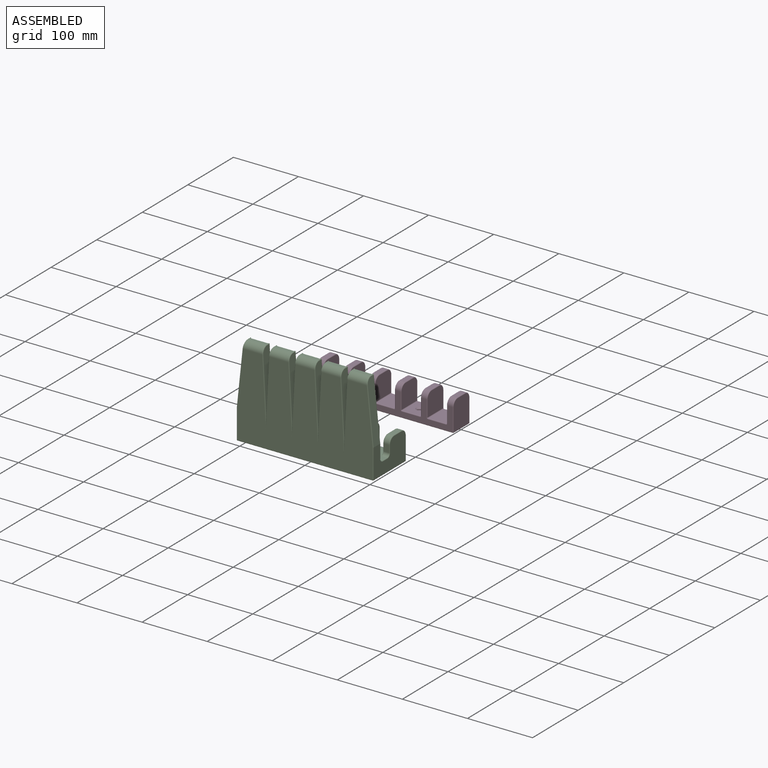
[diagram: assembled view]
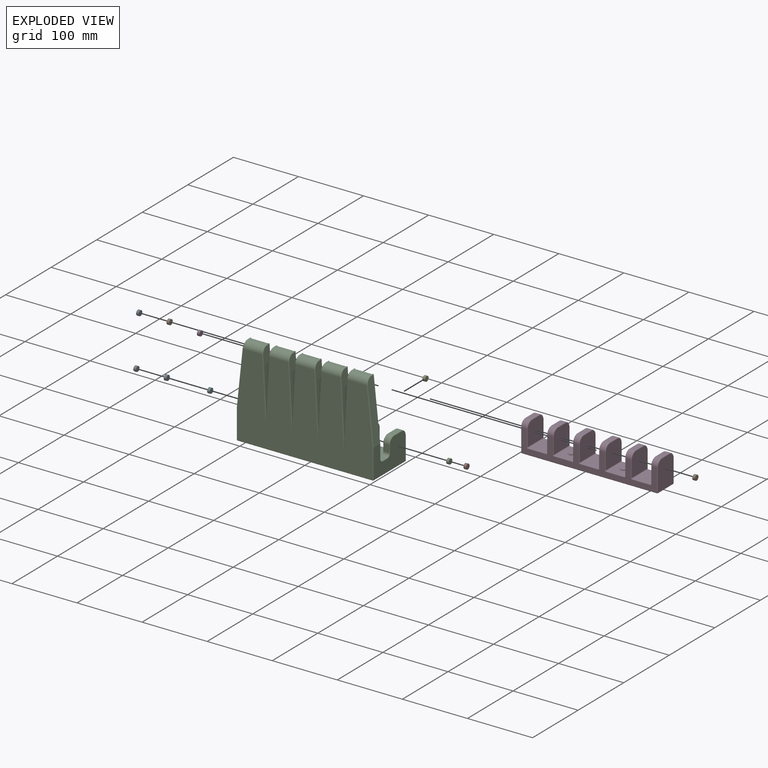
[diagram: exploded view]
GUIDED TOUR — MATED ASSEMBLY (Onshape document 5698bca56f402a3b68c1da93, AutoMate assembly 5698bca56f402a3b68c1da93_1af9b3462bdf1a4db7465c1d_8955c10a03307dd123dff11b_default)

This assembly has 12 components, labeled P0..P11 below (a component is one placed occurrence of a part; the same part can appear more than once), held together by 10 mates. A mate is a constraint between two components; its type names the relative motion it leaves free:
  FASTENED — locks the two components together rigidly (no relative motion).
Axis/direction vectors are unit vectors and 'through' points are millimeter coordinates, both in the assembly's world frame.

MATES
  1. FASTENED "Fastened 5": P9 <-> P11, direction (-1.000, 0.000, 0.000) through (54.44, 94.60, -52.37) mm
  2. FASTENED "Fastened 3": P3 <-> P11, direction (-1.000, 0.000, 0.000) through (-25.56, 94.60, -55.50) mm
  3. FASTENED "Fastened 6": P6 <-> P10, direction (-1.000, 0.000, 0.000) through (-103.40, -48.19, -49.73) mm
  4. FASTENED "Fastened 2": P1 <-> P11, direction (-1.000, 0.000, 0.000) through (-65.56, 94.60, -52.37) mm
  5. FASTENED "Fastened 4": P4 <-> P11, direction (-1.000, 0.000, 0.000) through (14.44, 94.60, -52.37) mm
  6. FASTENED "Fastened 8": P5 <-> P10, direction (-1.000, 0.000, 0.000) through (-23.40, -48.19, -49.73) mm
  7. FASTENED "Fastened 10": P7 <-> P10, direction (-1.000, 0.000, 0.000) through (56.60, -48.19, -49.73) mm
  8. FASTENED "Fastened 1": P8 <-> P11, direction (-1.000, 0.000, 0.000) through (-105.56, 94.60, -52.37) mm
  9. FASTENED "Fastened 7": P0 <-> P10, direction (-1.000, 0.000, 0.000) through (-63.40, -48.19, -49.73) mm
  10. FASTENED "Fastened 9": P2 <-> P10, direction (-1.000, 0.000, 0.000) through (16.60, -48.19, -49.73) mm

ASSEMBLY ORDER
  1. P10 — the base component [order verified]
  2. P7 [order verified]
  3. P2 [order verified]
  4. P5 [order verified]
  5. P0 [order verified]
  6. P11 [order verified]
  7. P4 [order verified]
  8. P3 [order verified]
  9. P9 [order verified]
  10. P1 [order verified]
  11. P6 [order verified]
  12. P8 [order verified]
Order-tag legend:
  [order verified] — this step's position reverses a verified removal order: the component was checked to insert without passing through the ones already placed.

Of the 12 components, 10 carry the full construction recipe — the FeatureScript program that regenerates the part's solid from scratch; the rest are supplied as boundary geometry only.
Each toured component is shown spotlighted twice — in the assembled view, then in the exploded view, where a leader line traces a displaced component back to its assembled socket (saturated green if recipe-attached, orange if geometry-only; every other component desaturated gray) — followed by its recipe or geometry summary and the mates that hold it.
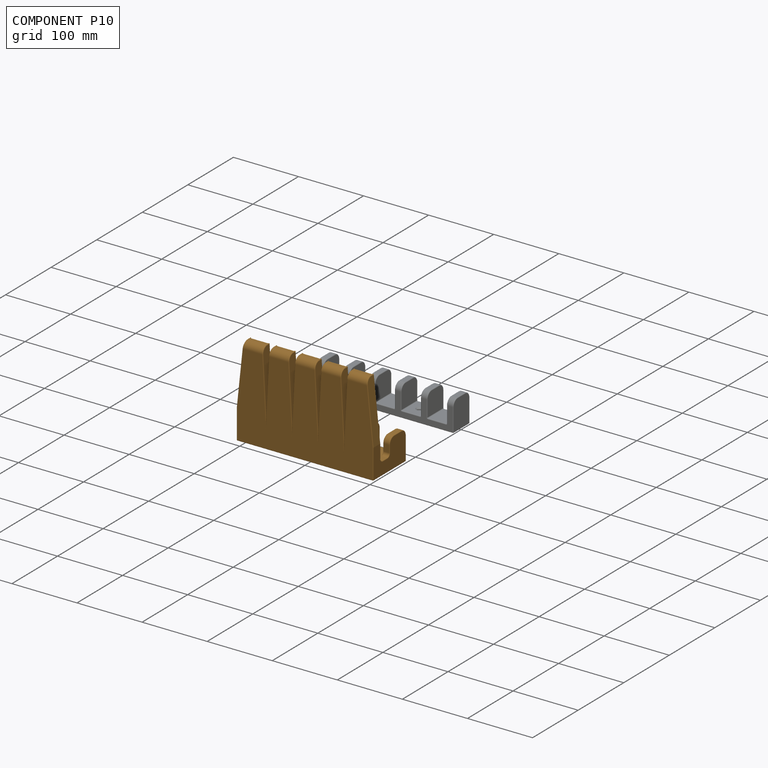
[diagram: component P10 — assembled]
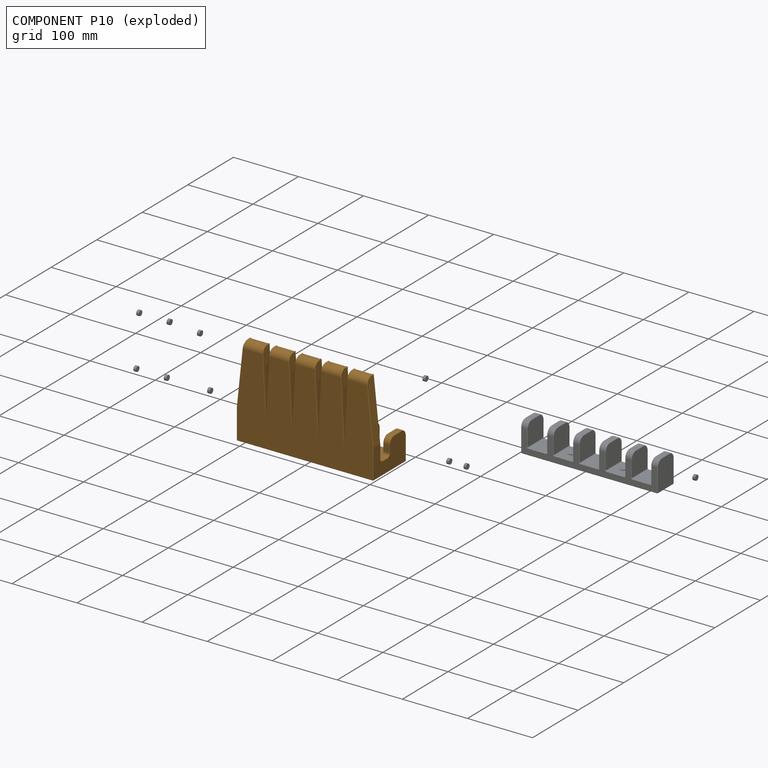
[diagram: component P10 — exploded]
COMPONENT P10 — geometry summary (no construction recipe available for this part):
  bounding box: 210.0 x 140.1 x 72.8 mm
  B-rep topology: 1 solid, 371 faces, 1758 edges
  volume: 558337 mm^3 (26% of its bounding box)
Held by: FASTENED mate "Fastened 6" to P6; FASTENED mate "Fastened 8" to P5; FASTENED mate "Fastened 10" to P7; FASTENED mate "Fastened 7" to P0; FASTENED mate "Fastened 9" to P2.
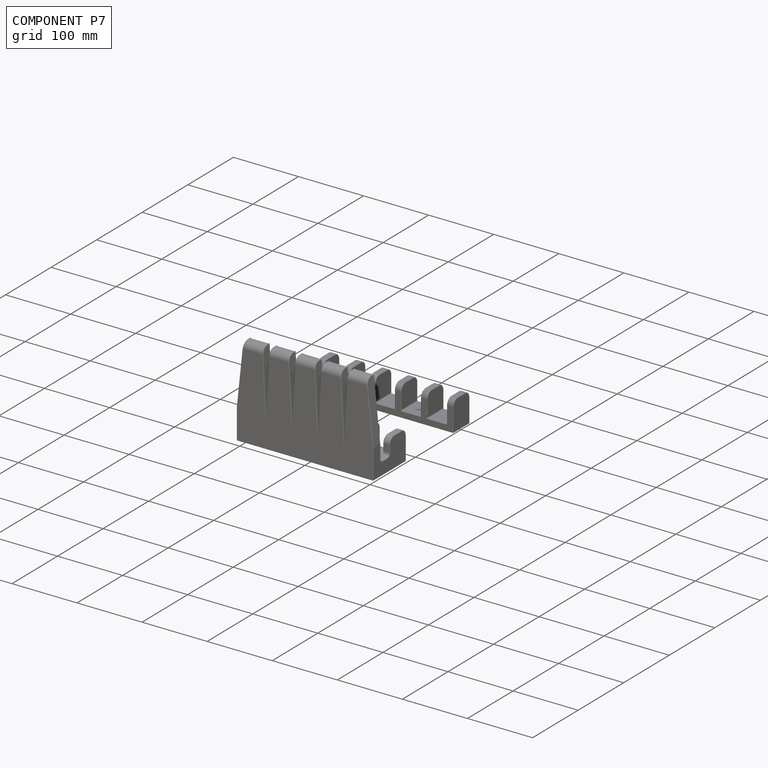
[diagram: component P7 — assembled]
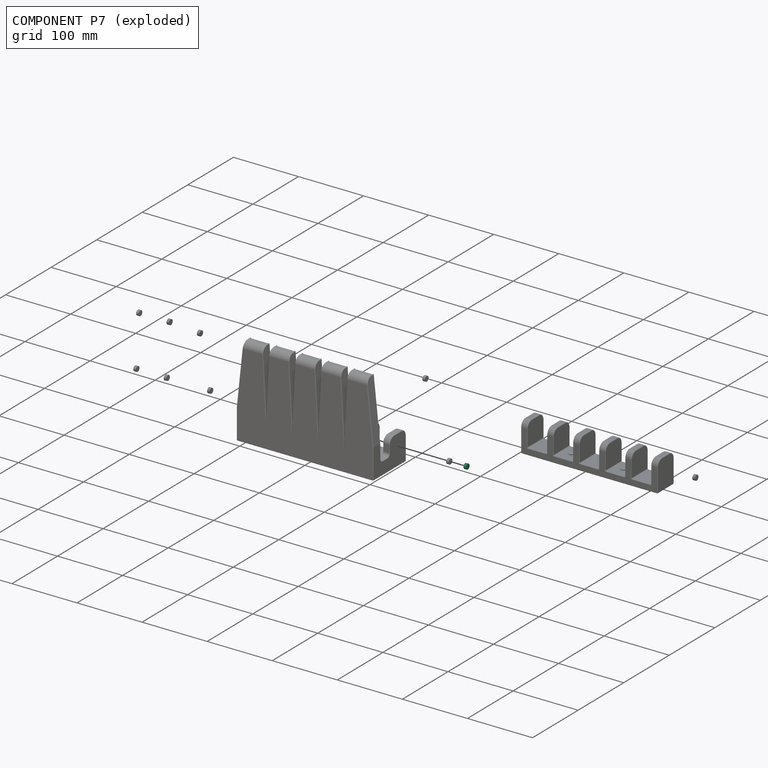
[diagram: component P7 — exploded]
COMPONENT P7 — same part as P0 (CADFS 00799258); its construction recipe is shown at P0.
Held by: FASTENED mate "Fastened 10" to P10.
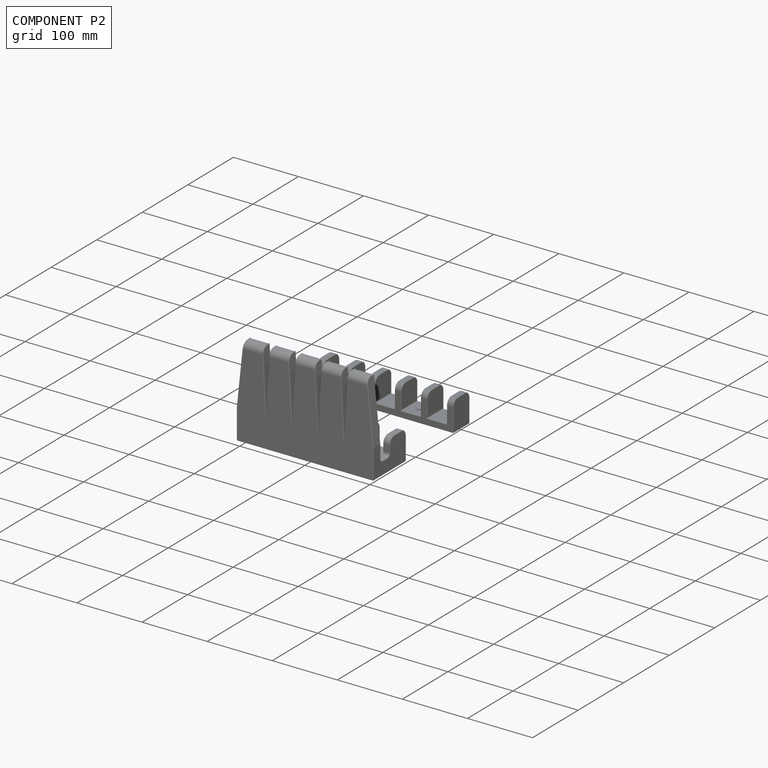
[diagram: component P2 — assembled]
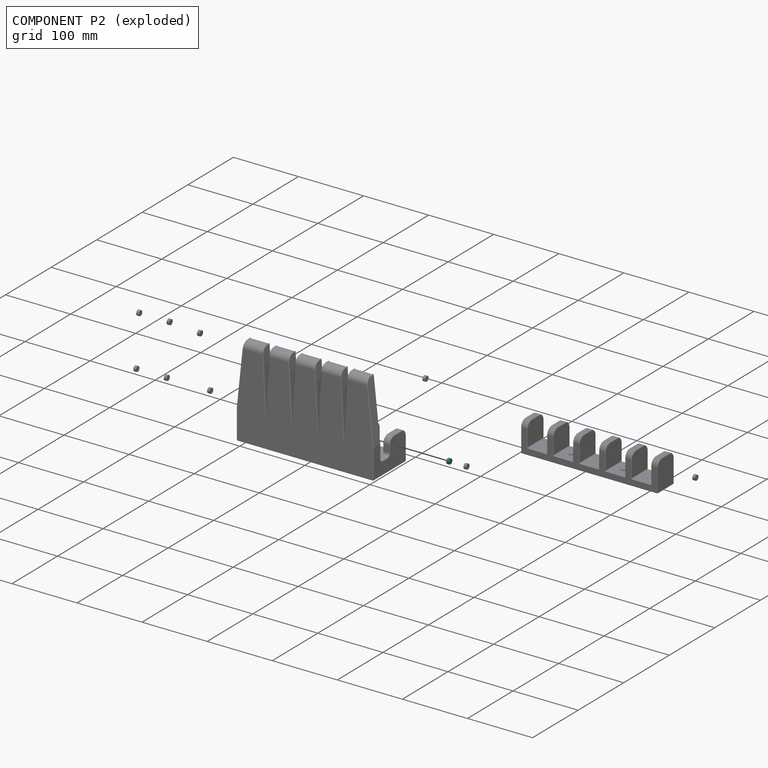
[diagram: component P2 — exploded]
COMPONENT P2 — same part as P0 (CADFS 00799258); its construction recipe is shown at P0.
Held by: FASTENED mate "Fastened 9" to P10.
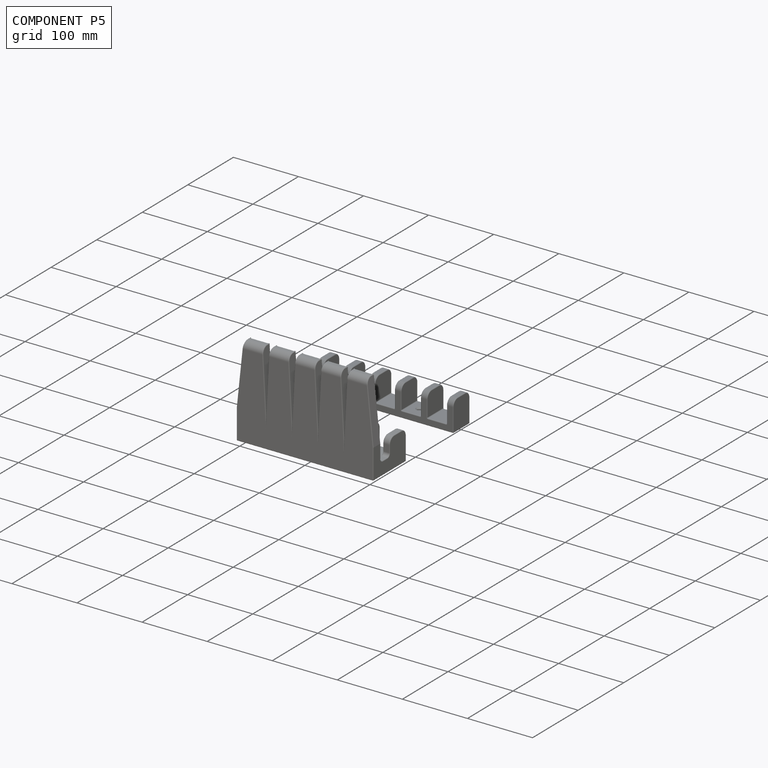
[diagram: component P5 — assembled]
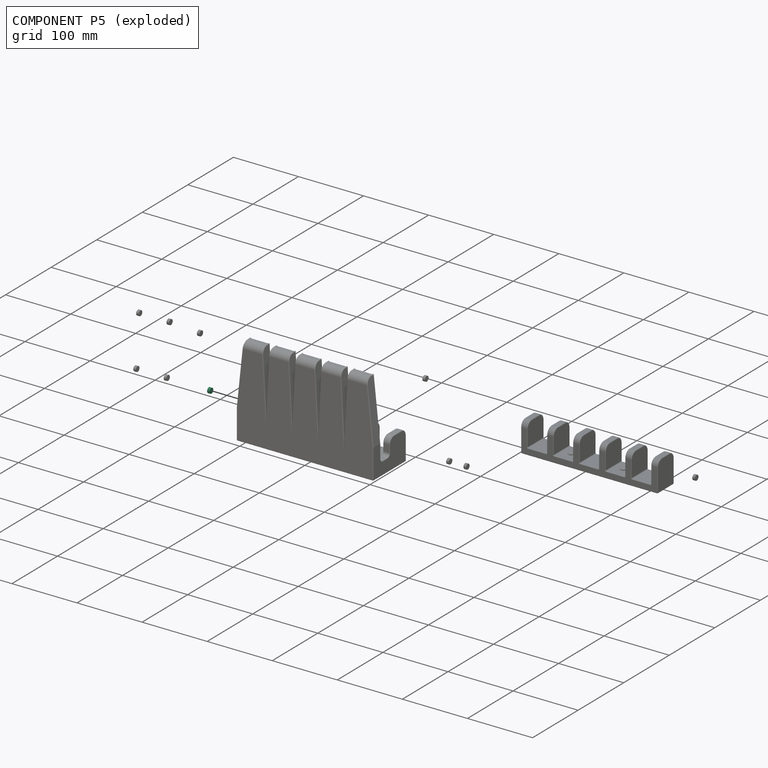
[diagram: component P5 — exploded]
COMPONENT P5 — same part as P0 (CADFS 00799258); its construction recipe is shown at P0.
Held by: FASTENED mate "Fastened 8" to P10.
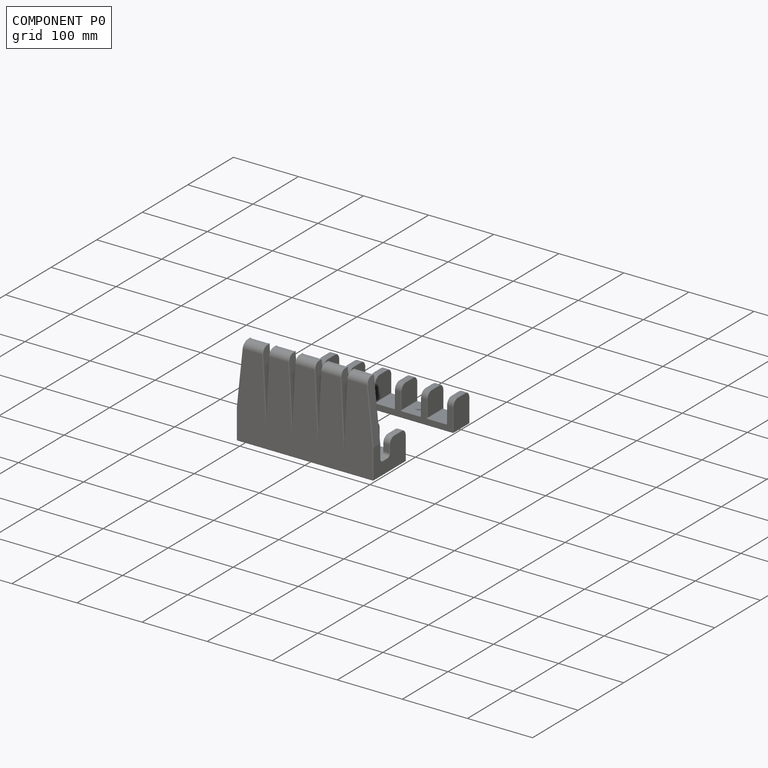
[diagram: component P0 — assembled]
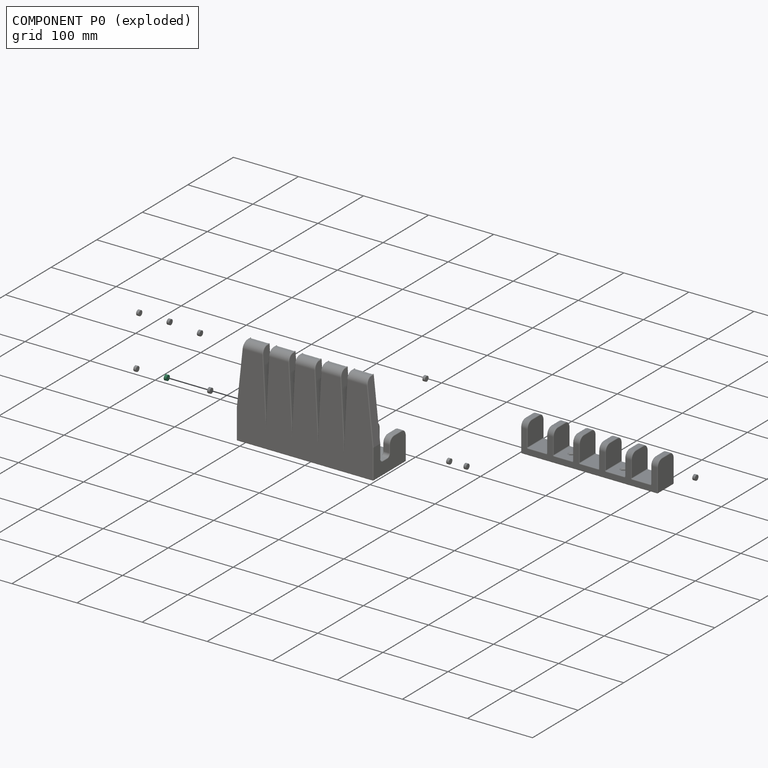
[diagram: component P0 — exploded]
COMPONENT P0 — recipe-attached (CADFS 00799258, mesh-verified: the recipe's output STEP matches this component's geometry to below the mesh-comparison resolution (tessellation chordal tolerance ~0.0179 mm)).
Held by: FASTENED mate "Fastened 7" to P10.
Construction recipe (FeatureScript — the CAD program that rebuilds this solid; sketch coordinates are in the units given by the * unit suffixes, e.g. mm):

FeatureScript 1511;
import(path : "onshape/std/geometry.fs", version : "1511.0");
import(path : "onshape/std/common.fs", version : "1511.0");
const mm = millimeter;
const VERTEX = EntityType.VERTEX;
const EDGE = EntityType.EDGE;
const FACE = EntityType.FACE;
const BODY = EntityType.BODY;
function v(x, y){return vector(x, y);}
function OD(order){return orderDisambiguation(order);}
function OSD(set){return originalSetDisambiguation(set);}
function TD(topology){return topologyDisambiguation(topology);}
function TDD(query){return trueDependencyDisambiguation(query);}
function sQuery(a, b, c) {return sketchEntityQuery(a, b, c);}

annotation { "Feature Type Name" : "Feature", "Feature Type Description" : "" }
export const myFeature = defineFeature(function(context is Context, id is Id, definition is map)
    precondition{}
    {
        {
            var Q0;
            Q0=qCreatedBy(makeId("Top.planeOp"),FACE);
            var sketch = newSketch(context, id + "F0", { "sketchPlane" : qUnion([Q0])});
            skCircle(sketch, "E0", {"center": v(0, 0) * mm, "radius": 3.98 * mm});
            skSolve(sketch);
        }
        {
            var Q0;
            Q0 = qSketchRegion(id + "F0", true);
            extrude(context, id + "F1", {"entities" : qUnion([Q0]), "depth" : 4 * mm, "offsetDistance" : 25 * mm});
        }
    });
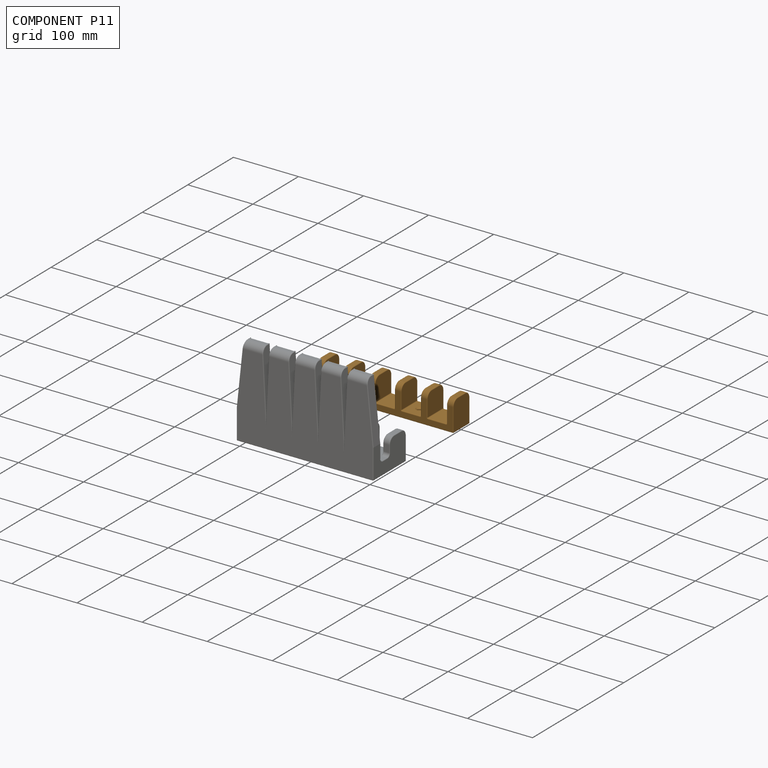
[diagram: component P11 — assembled]
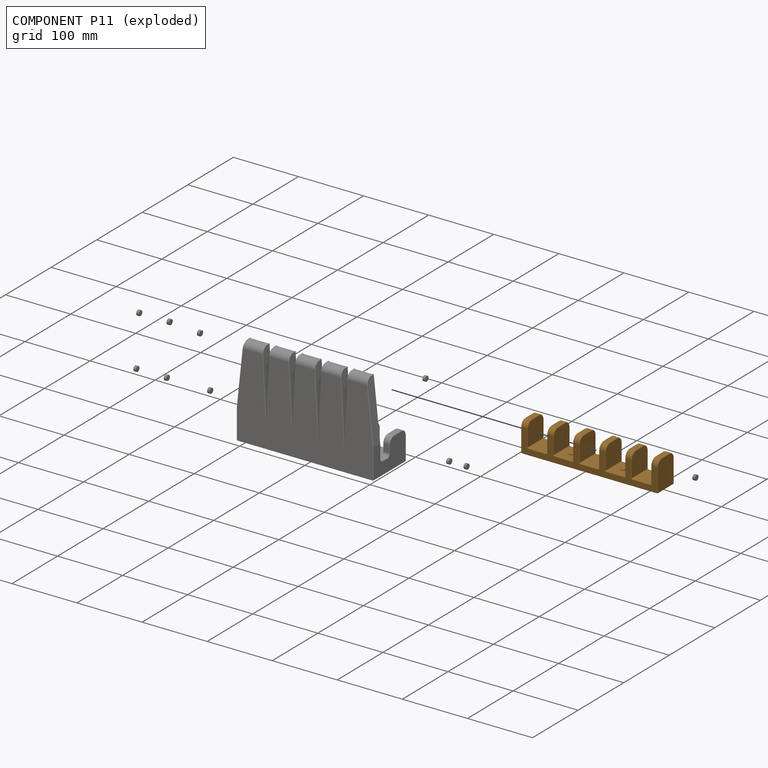
[diagram: component P11 — exploded]
COMPONENT P11 — geometry summary (no construction recipe available for this part):
  bounding box: 210.0 x 46.8 x 37.6 mm
  B-rep topology: 1 solid, 160 faces, 718 edges
  volume: 148013 mm^3 (40% of its bounding box)
  symmetry: mirror-symmetric across its y mid-plane
Held by: FASTENED mate "Fastened 5" to P9; FASTENED mate "Fastened 3" to P3; FASTENED mate "Fastened 2" to P1; FASTENED mate "Fastened 4" to P4; FASTENED mate "Fastened 1" to P8.
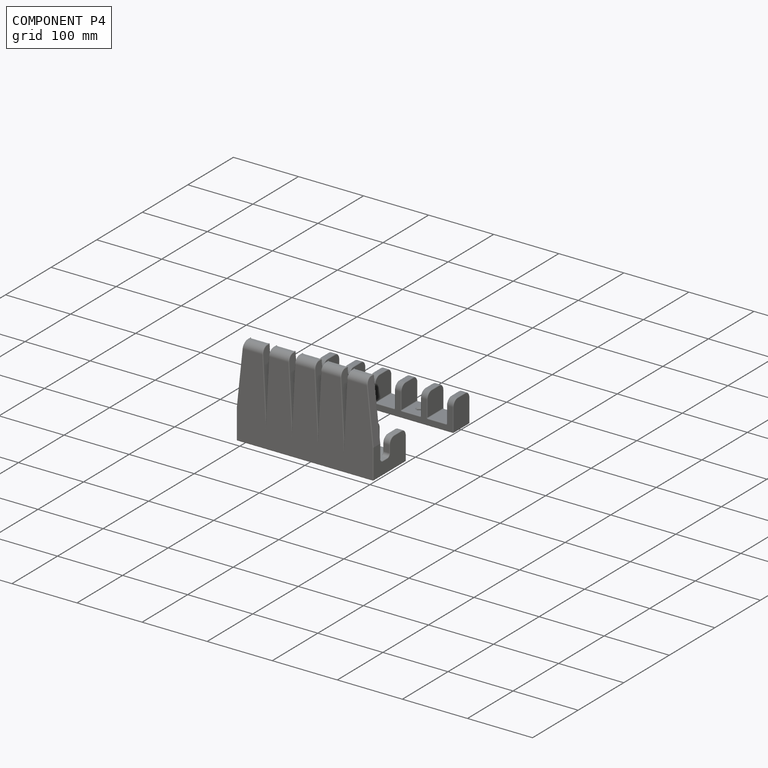
[diagram: component P4 — assembled]
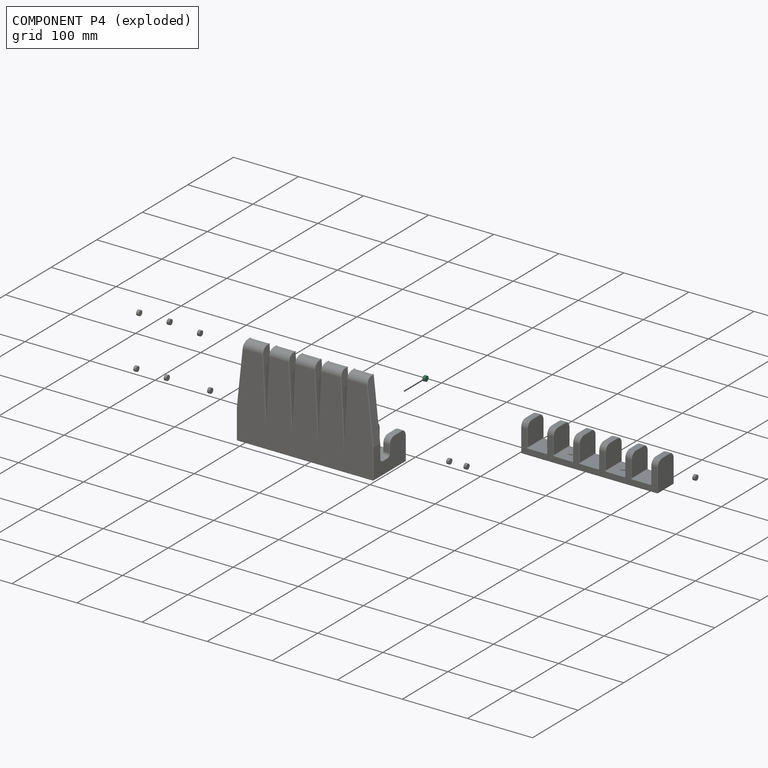
[diagram: component P4 — exploded]
COMPONENT P4 — same part as P0 (CADFS 00799258); its construction recipe is shown at P0.
Held by: FASTENED mate "Fastened 4" to P11.
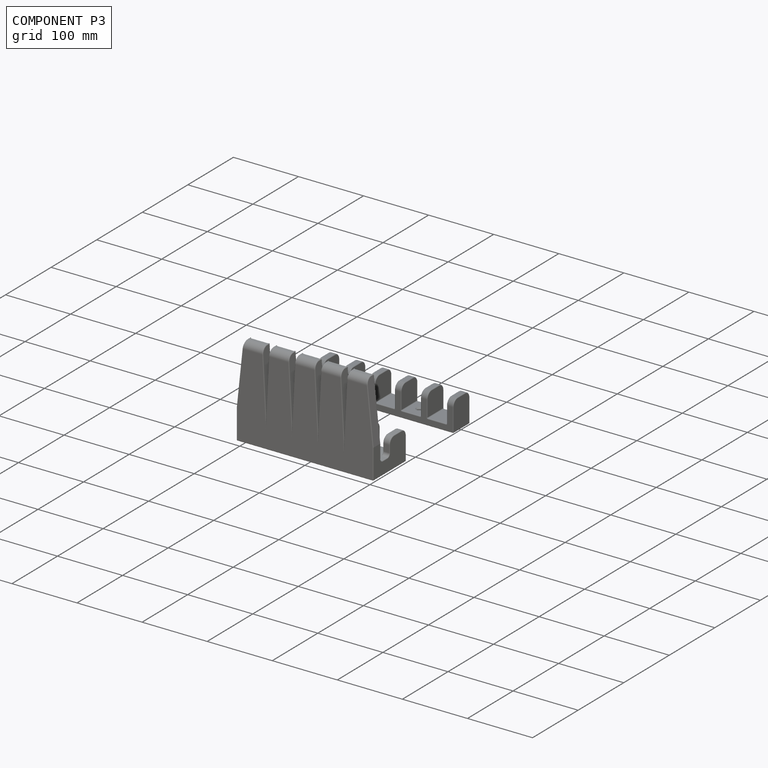
[diagram: component P3 — assembled]
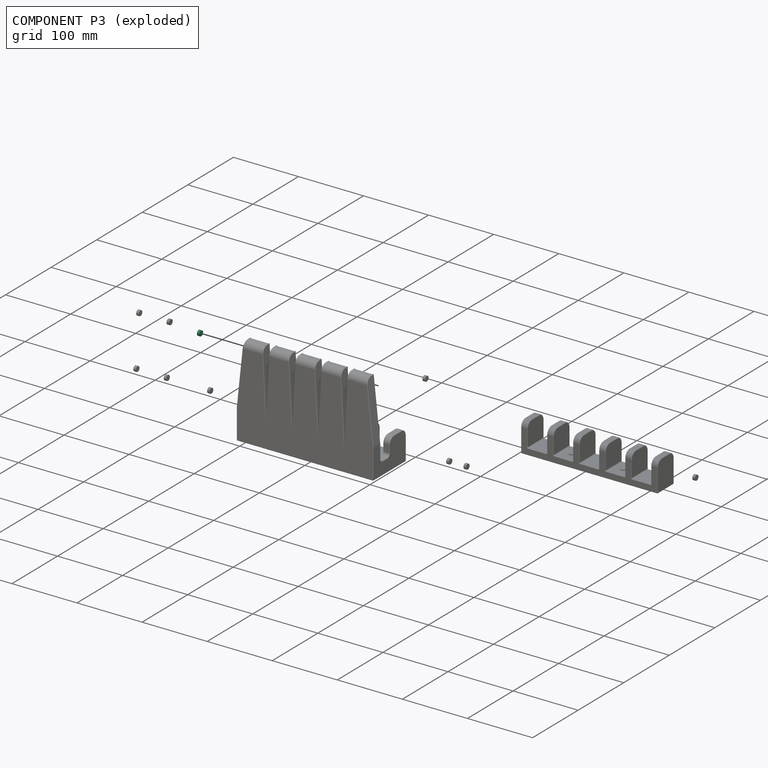
[diagram: component P3 — exploded]
COMPONENT P3 — same part as P0 (CADFS 00799258); its construction recipe is shown at P0.
Held by: FASTENED mate "Fastened 3" to P11.
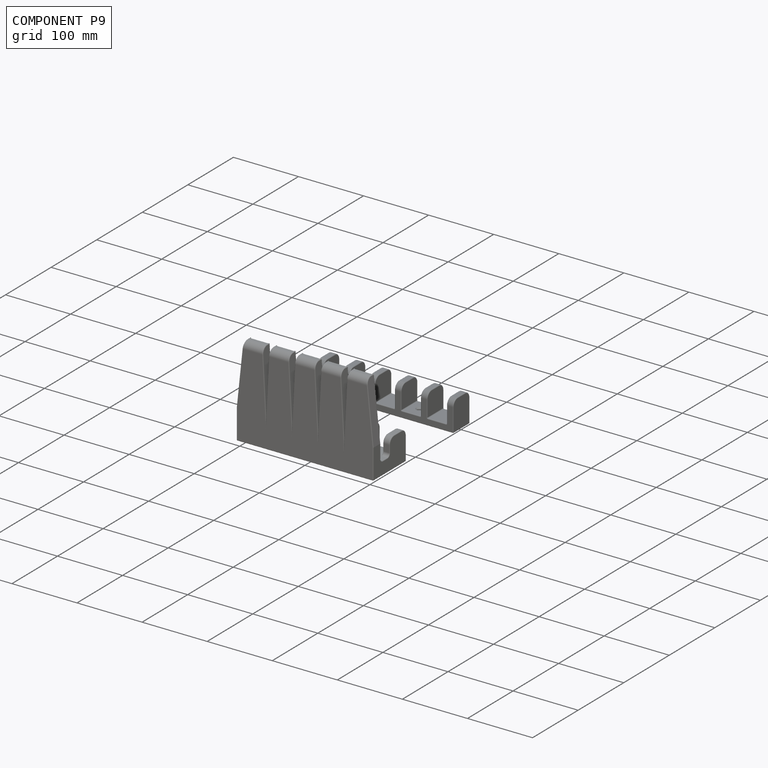
[diagram: component P9 — assembled]
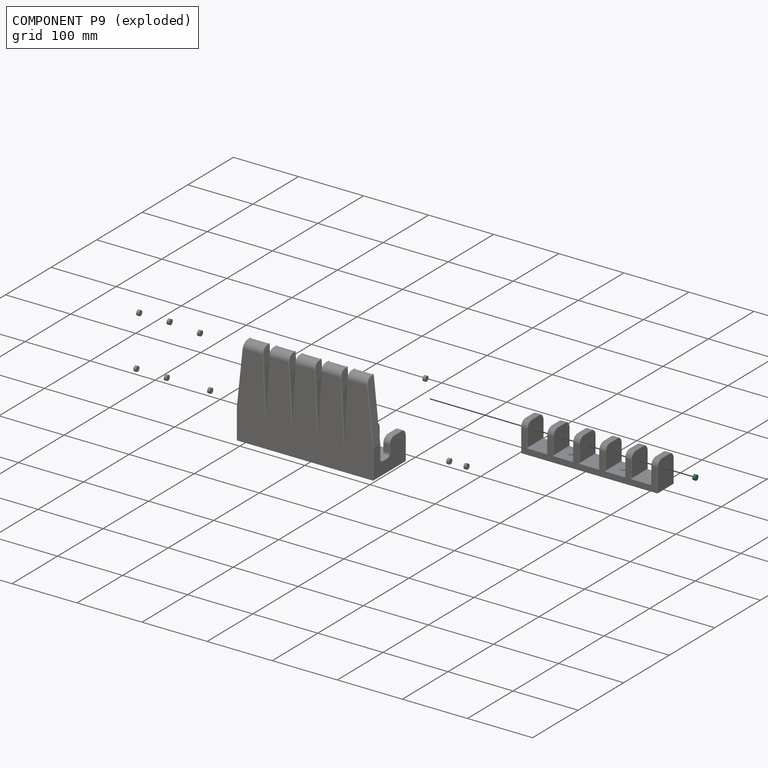
[diagram: component P9 — exploded]
COMPONENT P9 — same part as P0 (CADFS 00799258); its construction recipe is shown at P0.
Held by: FASTENED mate "Fastened 5" to P11.
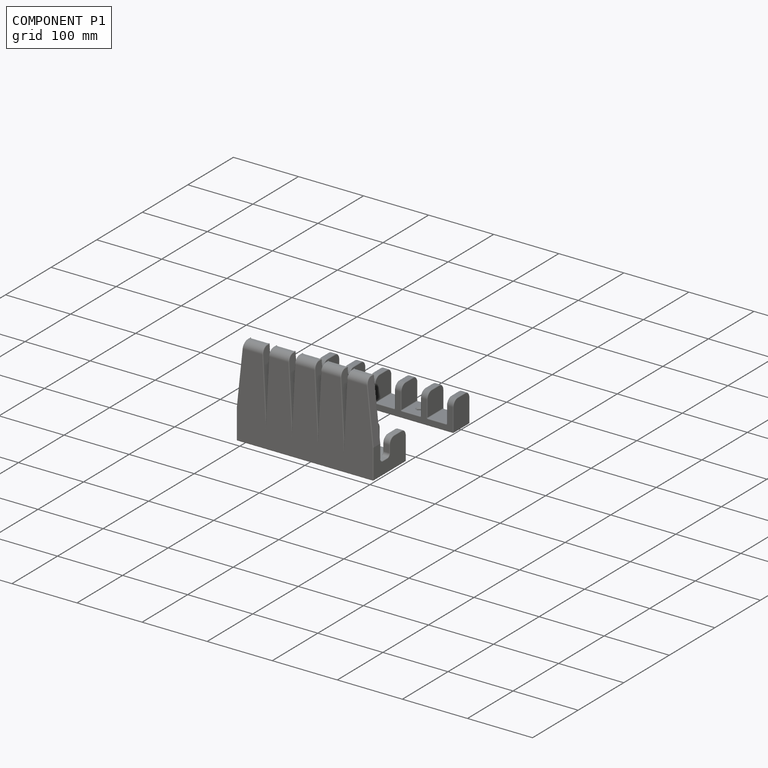
[diagram: component P1 — assembled]
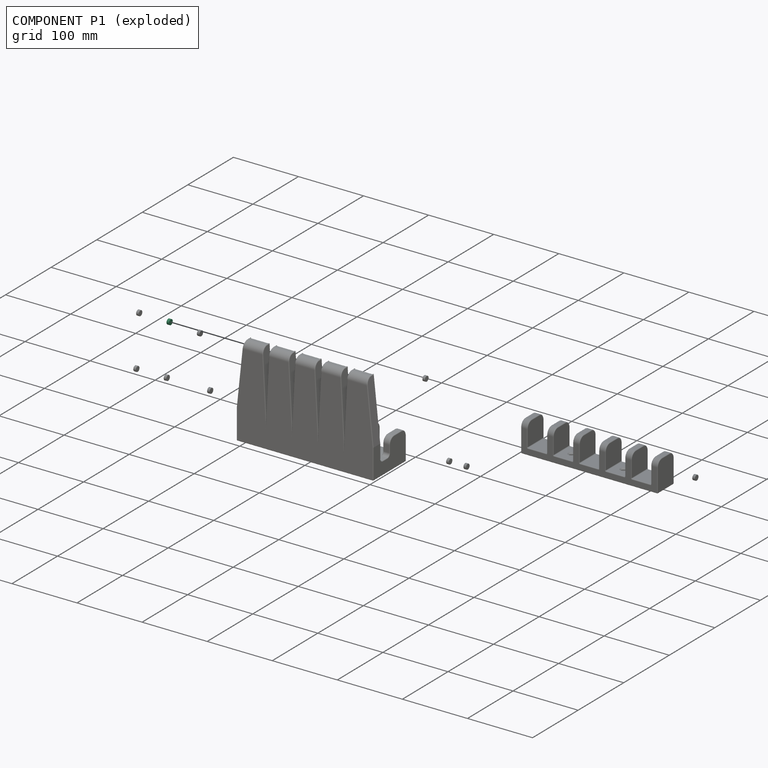
[diagram: component P1 — exploded]
COMPONENT P1 — same part as P0 (CADFS 00799258); its construction recipe is shown at P0.
Held by: FASTENED mate "Fastened 2" to P11.
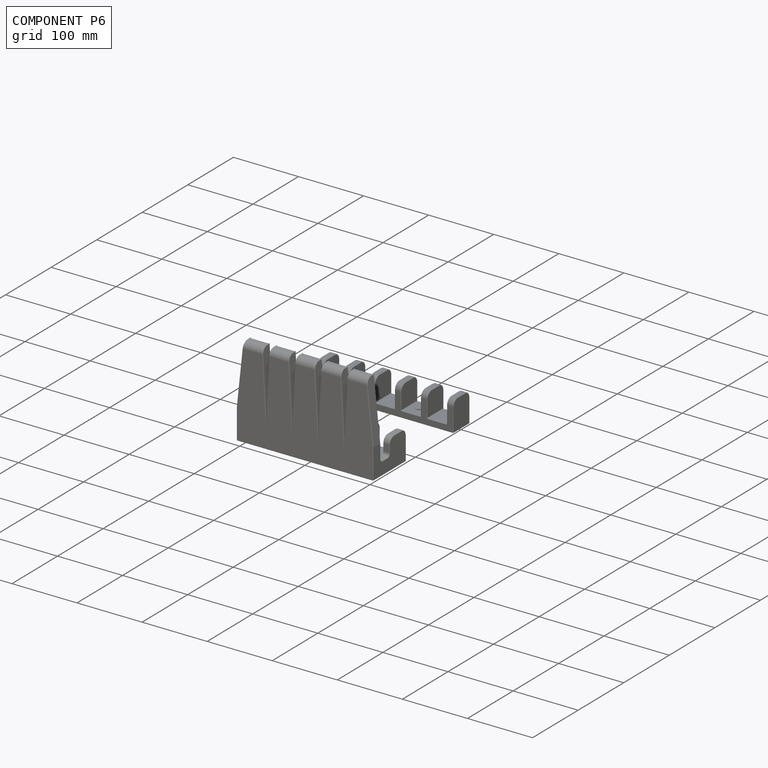
[diagram: component P6 — assembled]
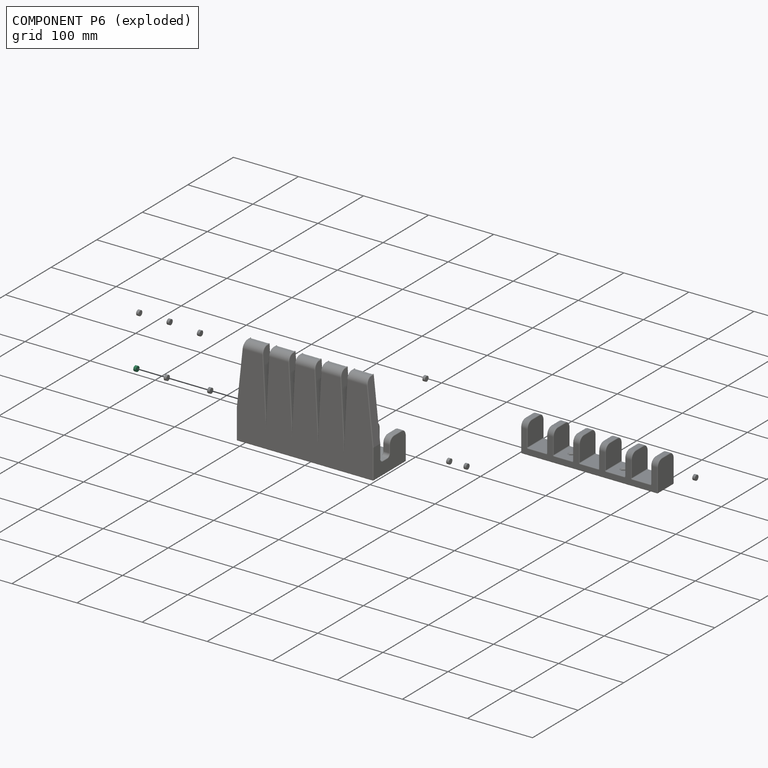
[diagram: component P6 — exploded]
COMPONENT P6 — same part as P0 (CADFS 00799258); its construction recipe is shown at P0.
Held by: FASTENED mate "Fastened 6" to P10.
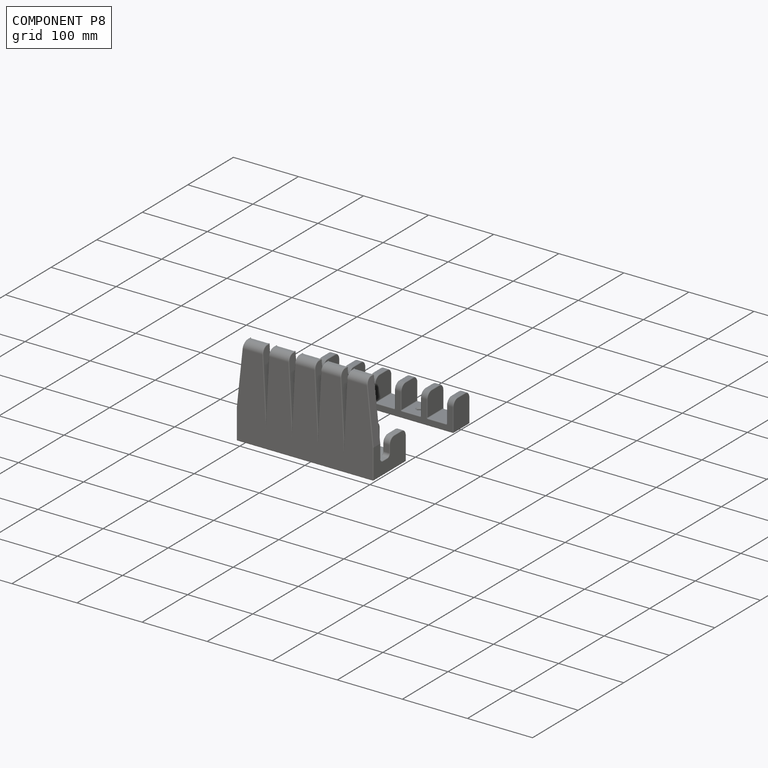
[diagram: component P8 — assembled]
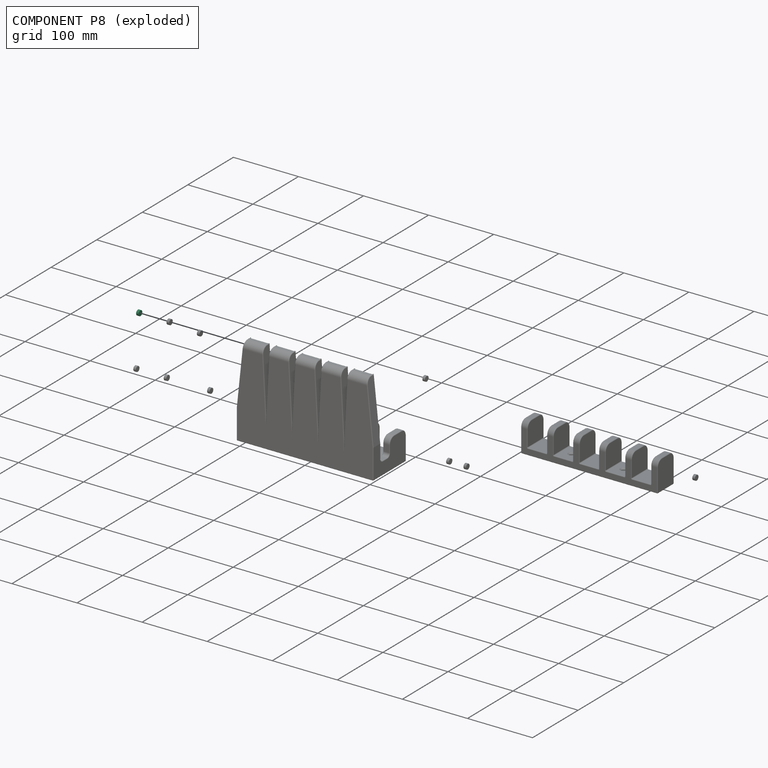
[diagram: component P8 — exploded]
COMPONENT P8 — same part as P0 (CADFS 00799258); its construction recipe is shown at P0.
Held by: FASTENED mate "Fastened 1" to P11.
PROVENANCE & LICENSES
Assembly (occurrences, transforms, mates, per-part STEP geometry): AutoMate dataset, Zenodo record 7776208, CC0.
Construction recipes: CADFS (HuggingFace VladPyatov/CADFS, CC-BY-4.0, layered over the ABC dataset), FeatureScript reconstruction programs keyed by ABC model id.
Join: ABC meta listings map ABC model id -> Onshape documentId; within a shared document, parts are matched by geometric signature (bounding-box dims + volume at 0.1% relative tolerance, exact B-rep face/solid counts).
Verification: 10 of this assembly's 12 components carry a recipe attachment, and every attachment is mesh-verified: the CADFS STEP and the AutoMate member STEP were compared as meshes in their shared local frame (symmetric sampled-point-to-mesh distance); worst across the 10 attachments: below the mesh-comparison resolution (tessellation chordal tolerance ~0.0179 mm) on a 12 mm part.
Renders: orthographic iso camera (az 35 / el 25); the floor grid conveys scale (grid pitch printed in each image; no ruler). In the exploded view each component is displaced by its stored offset vector: the offsets alone carry the explosion direction (mate normal/axis signs are not orientation cues and do not encode it), and separation distances are assigned per mate-chain, not proportionally to assembly-order depth.
